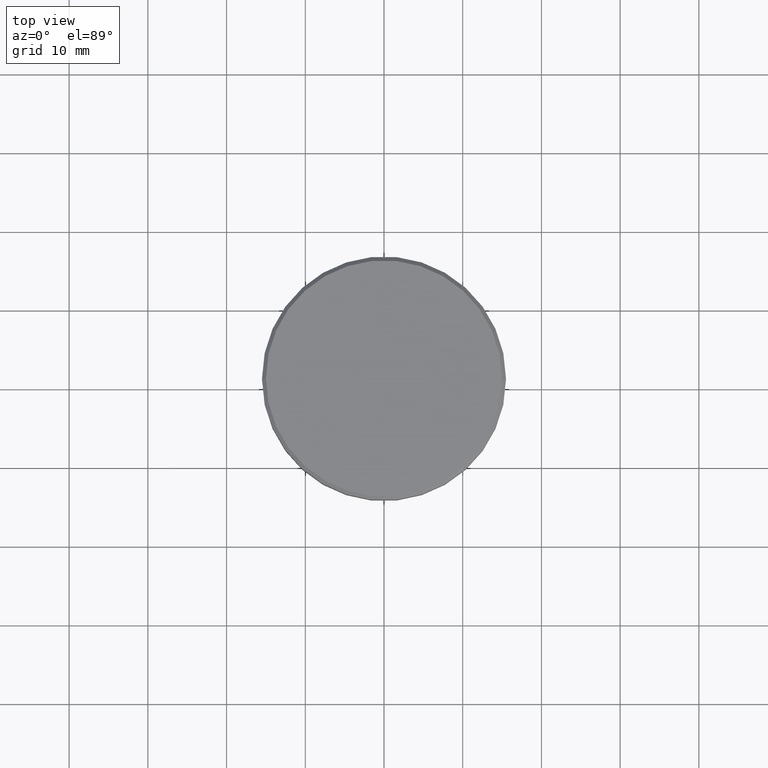
[diagram: clean part render]
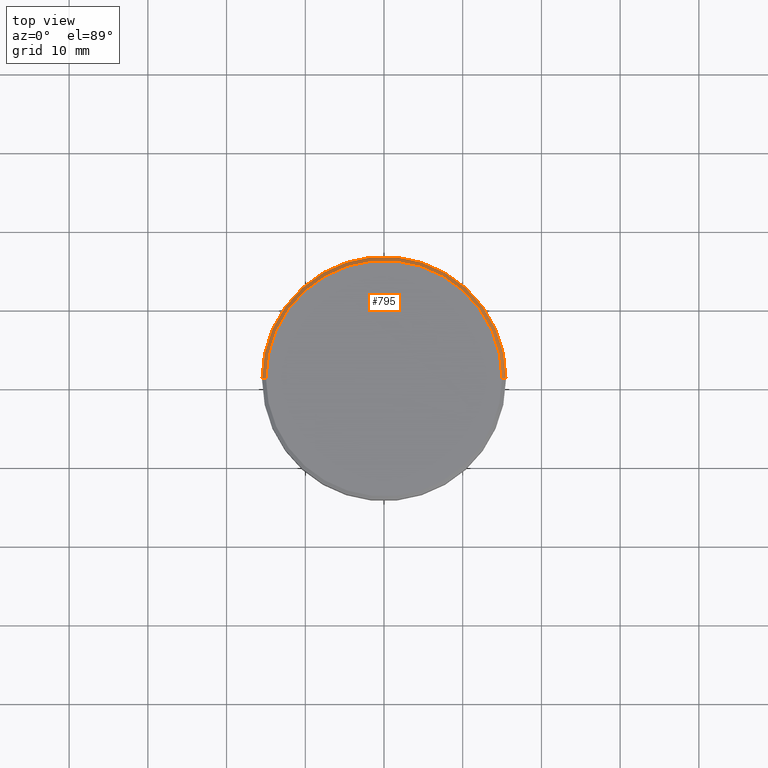
[diagram: same view with one face highlighted and labeled with its STEP entity id]
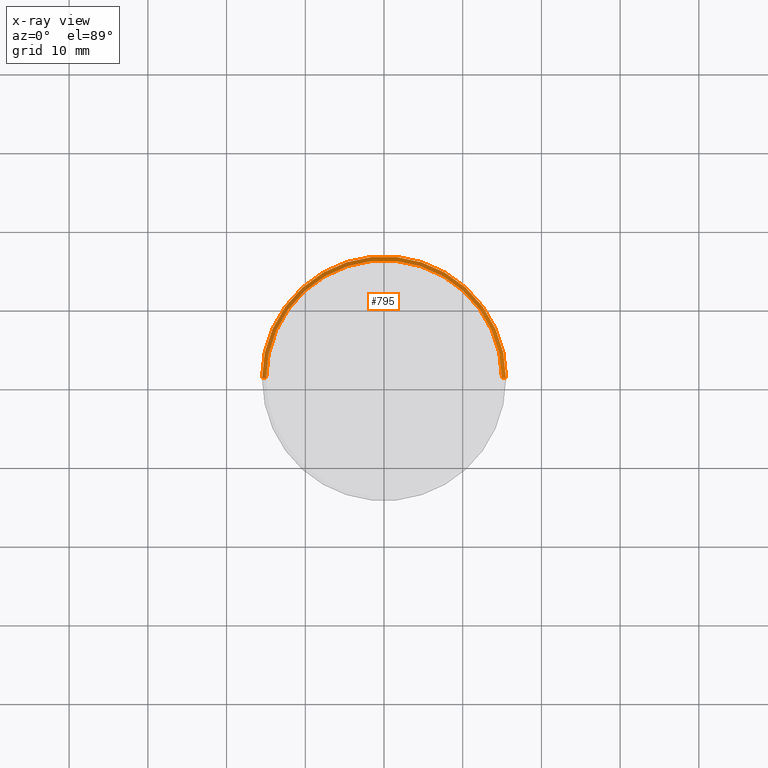
[diagram: x-ray of the same camera — body ghosted, the highlighted face saturated]
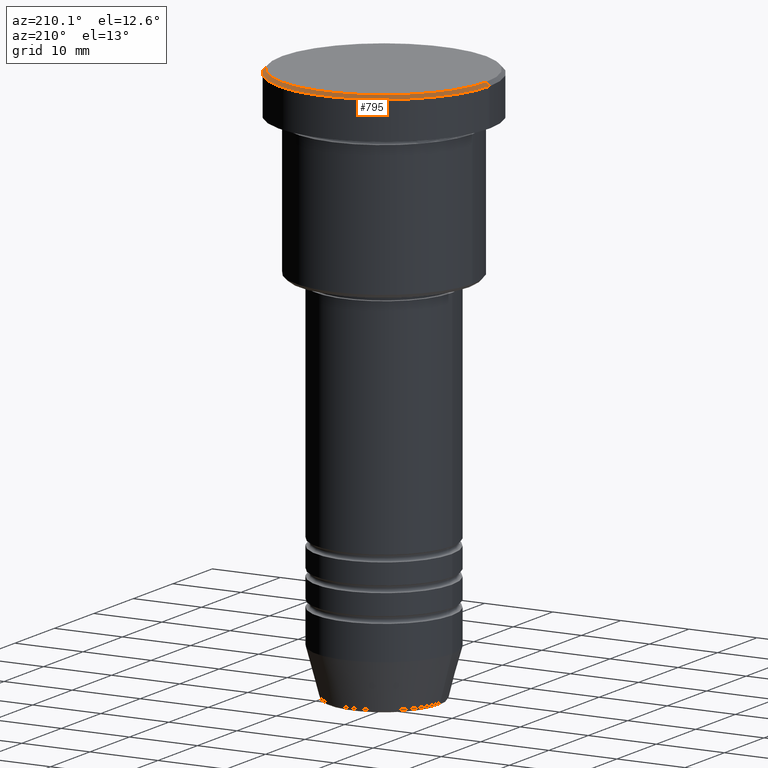
[diagram: same view with one face highlighted and labeled with its STEP entity id]
A machine part, top view. The second image highlights one B-rep face of the part: STEP entity #795.
The next image is the same camera in x-ray: the body ghosted, the highlighted face saturated — about 0% of this face is hidden behind the body in this view.
A second angle (auxiliary view) of the same face is appended — the face is thin or edge-on in the first view.
In plain terms, the highlighted conical surface has half-angle 45 deg.
Its self-contained STEP definition (entity closure, byte-faithful):
#20 = CARTESIAN_POINT ( 'NONE',  ( -15.00000000000000000, 0.000000000000000000, 0.000000000000000000 ) ) ;
#30 = ORIENTED_EDGE ( 'NONE', *, *, #676, .F. ) ;
#34 = ORIENTED_EDGE ( 'NONE', *, *, #1049, .F. ) ;
#58 = VERTEX_POINT ( 'NONE', #255 ) ;
#101 = DIRECTION ( 'NONE',  ( 1.000000000000000000, 0.000000000000000000, 0.000000000000000000 ) ) ;
#104 = LINE ( 'NONE', #20, #743 ) ;
#138 = DIRECTION ( 'NONE',  ( -1.000000000000000000, 0.000000000000000000, 0.000000000000000000 ) ) ;
#193 = DIRECTION ( 'NONE',  ( 0.000000000000000000, 0.000000000000000000, -1.000000000000000000 ) ) ;
#236 = LINE ( 'NONE', #972, #859 ) ;
#250 = DIRECTION ( 'NONE',  ( 0.000000000000000000, 0.000000000000000000, -1.000000000000000000 ) ) ;
#255 = CARTESIAN_POINT ( 'NONE',  ( -15.00000000000000000, 0.000000000000000000, 0.000000000000000000 ) ) ;
#332 = CARTESIAN_POINT ( 'NONE',  ( 0.000000000000000000, 0.000000000000000000, 0.000000000000000000 ) ) ;
#367 = AXIS2_PLACEMENT_3D ( 'NONE', #467, #1012, #101 ) ;
#369 = CONICAL_SURFACE ( 'NONE', #987, 15.00000000000000000, 0.7853981633974500554 ) ;
#392 = DIRECTION ( 'NONE',  ( -0.7071067811865487940, 0.000000000000000000, -0.7071067811865463515 ) ) ;
#400 = CARTESIAN_POINT ( 'NONE',  ( 15.00000000000000000, 1.867586368699713376E-15, 0.000000000000000000 ) ) ;
#418 = VERTEX_POINT ( 'NONE', #957 ) ;
#452 = AXIS2_PLACEMENT_3D ( 'NONE', #645, #193, #915 ) ;
#459 = CARTESIAN_POINT ( 'NONE',  ( -15.50000000000000000, 1.898202538678397557E-15, -0.4999999999999987232 ) ) ;
#467 = CARTESIAN_POINT ( 'NONE',  ( 0.000000000000000000, 0.000000000000000000, 0.000000000000000000 ) ) ;
#520 = DIRECTION ( 'NONE',  ( 0.7071067811865487940, 8.659560562354950115E-17, -0.7071067811865463515 ) ) ;
#559 = CIRCLE ( 'NONE', #452, 15.50000000000000000 ) ;
#645 = CARTESIAN_POINT ( 'NONE',  ( 0.000000000000000000, 0.000000000000000000, -0.4999999999999987232 ) ) ;
#676 = EDGE_CURVE ( 'NONE', #947, #58, #1108, .T. ) ;
#743 = VECTOR ( 'NONE', #392, 1000.000000000000000 ) ;
#767 = EDGE_LOOP ( 'NONE', ( #30, #1126, #1142, #34 ) ) ;
#784 = FACE_OUTER_BOUND ( 'NONE', #767, .T. ) ;
#795 = ADVANCED_FACE ( 'NONE', ( #784 ), #369, .T. ) ;
#804 = EDGE_CURVE ( 'NONE', #947, #418, #236, .T. ) ;
#859 = VECTOR ( 'NONE', #520, 1000.000000000000000 ) ;
#878 = EDGE_CURVE ( 'NONE', #943, #418, #559, .T. ) ;
#915 = DIRECTION ( 'NONE',  ( 1.000000000000000000, 0.000000000000000000, 0.000000000000000000 ) ) ;
#943 = VERTEX_POINT ( 'NONE', #459 ) ;
#947 = VERTEX_POINT ( 'NONE', #400 ) ;
#957 = CARTESIAN_POINT ( 'NONE',  ( 15.50000000000000000, 0.000000000000000000, -0.4999999999999987232 ) ) ;
#972 = CARTESIAN_POINT ( 'NONE',  ( 15.00000000000000000, 1.836970198721029589E-15, 0.000000000000000000 ) ) ;
#987 = AXIS2_PLACEMENT_3D ( 'NONE', #332, #250, #138 ) ;
#1012 = DIRECTION ( 'NONE',  ( -0.000000000000000000, -0.000000000000000000, 1.000000000000000000 ) ) ;
#1049 = EDGE_CURVE ( 'NONE', #58, #943, #104, .T. ) ;
#1108 = CIRCLE ( 'NONE', #367, 15.00000000000000000 ) ;
#1126 = ORIENTED_EDGE ( 'NONE', *, *, #804, .T. ) ;
#1142 = ORIENTED_EDGE ( 'NONE', *, *, #878, .F. ) ;